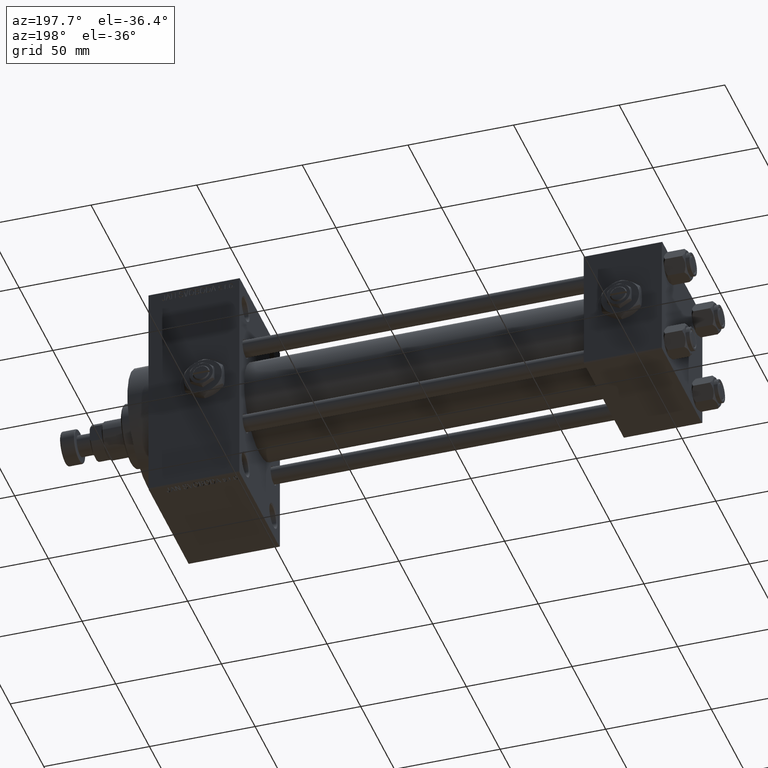
[diagram: clean part render]
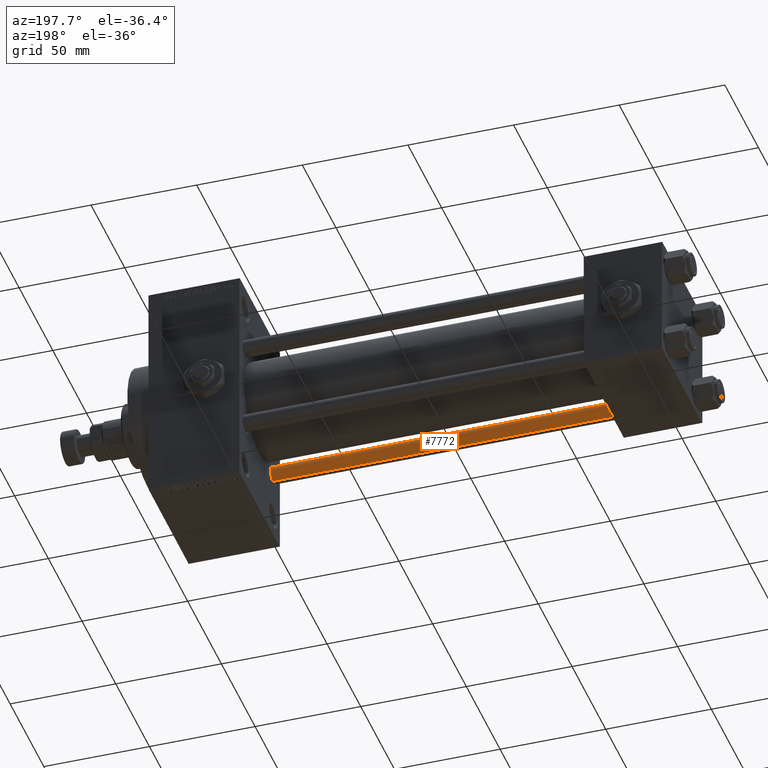
[diagram: same view with one face highlighted and labeled with its STEP entity id]
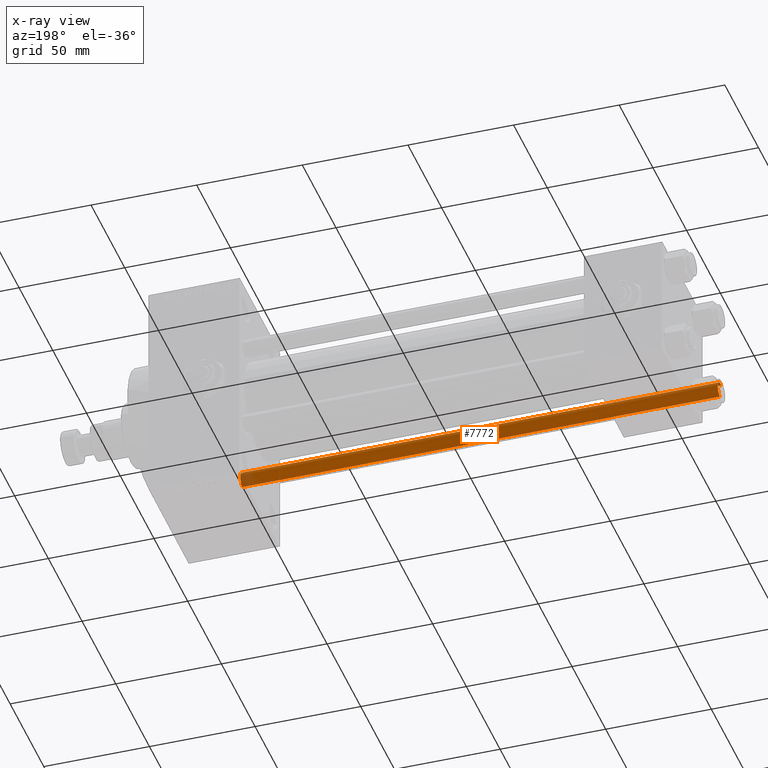
[diagram: x-ray of the same camera — body ghosted, the highlighted face saturated]
A machine part, auxiliary view. The second image highlights one B-rep face of the part: STEP entity #7772.
The next image is the same camera in x-ray: the body ghosted, the highlighted face saturated — about 3% of this face is hidden behind the body in this view.
In plain terms, the highlighted cylindrical surface (edge-blend (fillet) strip) has radius 4 mm, axis along (-1, 0, 0).
Its self-contained STEP definition (entity closure, byte-faithful):
#1162 = DIRECTION ( 'NONE',  ( -0.000000000000000000, -0.000000000000000000, 1.000000000000000000 ) ) ;
#1683 = AXIS2_PLACEMENT_3D ( 'NONE', #4431, #1162, #12233 ) ;
#2344 = EDGE_CURVE ( 'NONE', #24627, #3360, #8119, .T. ) ;
#2426 = DIRECTION ( 'NONE',  ( 0.000000000000000000, 0.000000000000000000, -1.000000000000000000 ) ) ;
#3079 = LINE ( 'NONE', #22684, #49534 ) ;
#3360 = VERTEX_POINT ( 'NONE', #26528 ) ;
#4431 = CARTESIAN_POINT ( 'NONE',  ( 0.000000000000000000, 0.000000000000000000, 0.5000000000002224887 ) ) ;
#4846 = CARTESIAN_POINT ( 'NONE',  ( 4.000000000000000000, 4.898587196589411843E-16, 226.5000000000001421 ) ) ;
#6286 = ORIENTED_EDGE ( 'NONE', *, *, #12205, .F. ) ;
#6359 = VERTEX_POINT ( 'NONE', #4846 ) ;
#7772 = ADVANCED_FACE ( 'NONE', ( #44270 ), #24901, .T. ) ;
#8119 = CIRCLE ( 'NONE', #1683, 4.000000000000000000 ) ;
#8944 = ORIENTED_EDGE ( 'NONE', *, *, #2344, .T. ) ;
#9328 = DIRECTION ( 'NONE',  ( -0.000000000000000000, -0.000000000000000000, -1.000000000000000000 ) ) ;
#9630 = EDGE_LOOP ( 'NONE', ( #6286, #10209, #43376, #8944 ) ) ;
#10209 = ORIENTED_EDGE ( 'NONE', *, *, #33992, .T. ) ;
#12205 = EDGE_CURVE ( 'NONE', #6359, #3360, #22330, .T. ) ;
#12233 = DIRECTION ( 'NONE',  ( 1.000000000000000000, 0.000000000000000000, 0.000000000000000000 ) ) ;
#13093 = CARTESIAN_POINT ( 'NONE',  ( 0.000000000000000000, 0.000000000000000000, 227.0000000000000000 ) ) ;
#16996 = CIRCLE ( 'NONE', #38685, 4.000000000000000000 ) ;
#22192 = DIRECTION ( 'NONE',  ( -0.000000000000000000, -0.000000000000000000, -1.000000000000000000 ) ) ;
#22330 = LINE ( 'NONE', #22572, #25983 ) ;
#22572 = CARTESIAN_POINT ( 'NONE',  ( 4.000000000000000000, 4.898587196589411843E-16, 227.0000000000000000 ) ) ;
#22632 = AXIS2_PLACEMENT_3D ( 'NONE', #13093, #9328, #36233 ) ;
#22684 = CARTESIAN_POINT ( 'NONE',  ( -4.000000000000000000, 0.000000000000000000, 227.0000000000000000 ) ) ;
#22831 = EDGE_CURVE ( 'NONE', #35394, #24627, #3079, .T. ) ;
#24627 = VERTEX_POINT ( 'NONE', #35895 ) ;
#24901 = CYLINDRICAL_SURFACE ( 'NONE', #22632, 4.000000000000000000 ) ;
#25983 = VECTOR ( 'NONE', #37675, 1000.000000000000000 ) ;
#26528 = CARTESIAN_POINT ( 'NONE',  ( 4.000000000000000000, 4.898587196589411843E-16, 0.5000000000002224887 ) ) ;
#33992 = EDGE_CURVE ( 'NONE', #6359, #35394, #16996, .T. ) ;
#35394 = VERTEX_POINT ( 'NONE', #39072 ) ;
#35895 = CARTESIAN_POINT ( 'NONE',  ( -4.000000000000000000, 0.000000000000000000, 0.5000000000002224887 ) ) ;
#36233 = DIRECTION ( 'NONE',  ( -1.000000000000000000, 0.000000000000000000, 0.000000000000000000 ) ) ;
#36388 = DIRECTION ( 'NONE',  ( 1.000000000000000000, 0.000000000000000000, 0.000000000000000000 ) ) ;
#37675 = DIRECTION ( 'NONE',  ( -0.000000000000000000, -0.000000000000000000, -1.000000000000000000 ) ) ;
#38685 = AXIS2_PLACEMENT_3D ( 'NONE', #40670, #2426, #36388 ) ;
#39072 = CARTESIAN_POINT ( 'NONE',  ( -4.000000000000000000, 0.000000000000000000, 226.5000000000001421 ) ) ;
#40670 = CARTESIAN_POINT ( 'NONE',  ( 0.000000000000000000, 0.000000000000000000, 226.5000000000001421 ) ) ;
#43376 = ORIENTED_EDGE ( 'NONE', *, *, #22831, .T. ) ;
#44270 = FACE_OUTER_BOUND ( 'NONE', #9630, .T. ) ;
#49534 = VECTOR ( 'NONE', #22192, 1000.000000000000000 ) ;